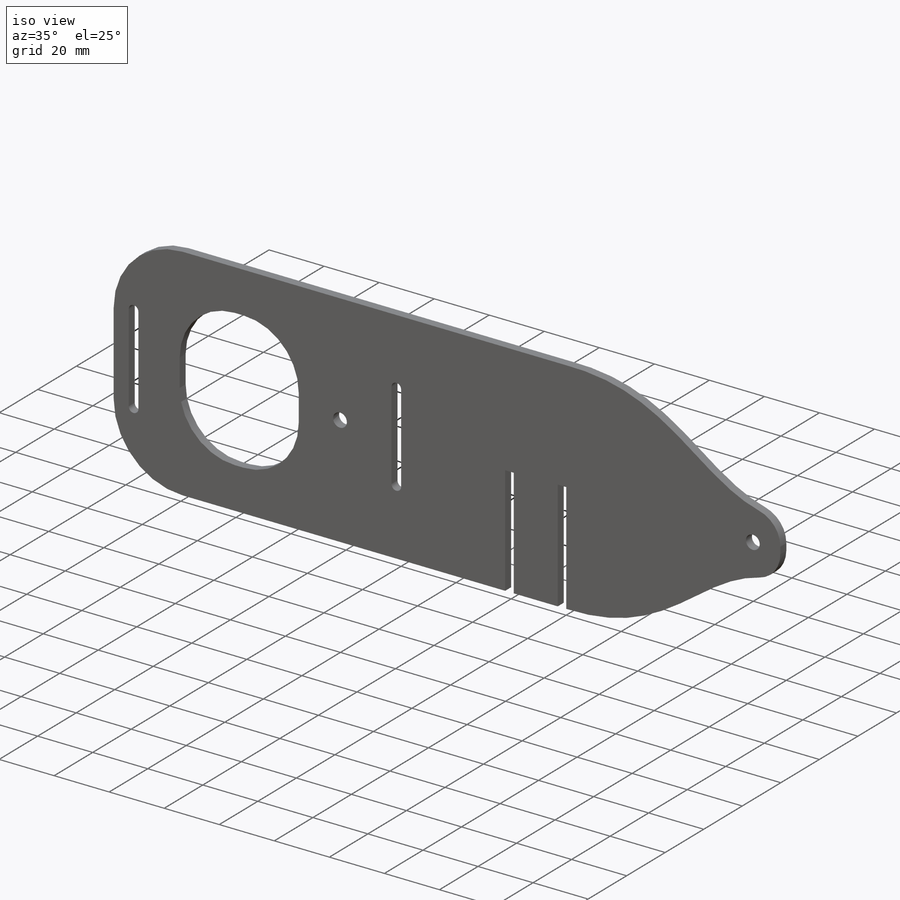
[diagram: iso view]
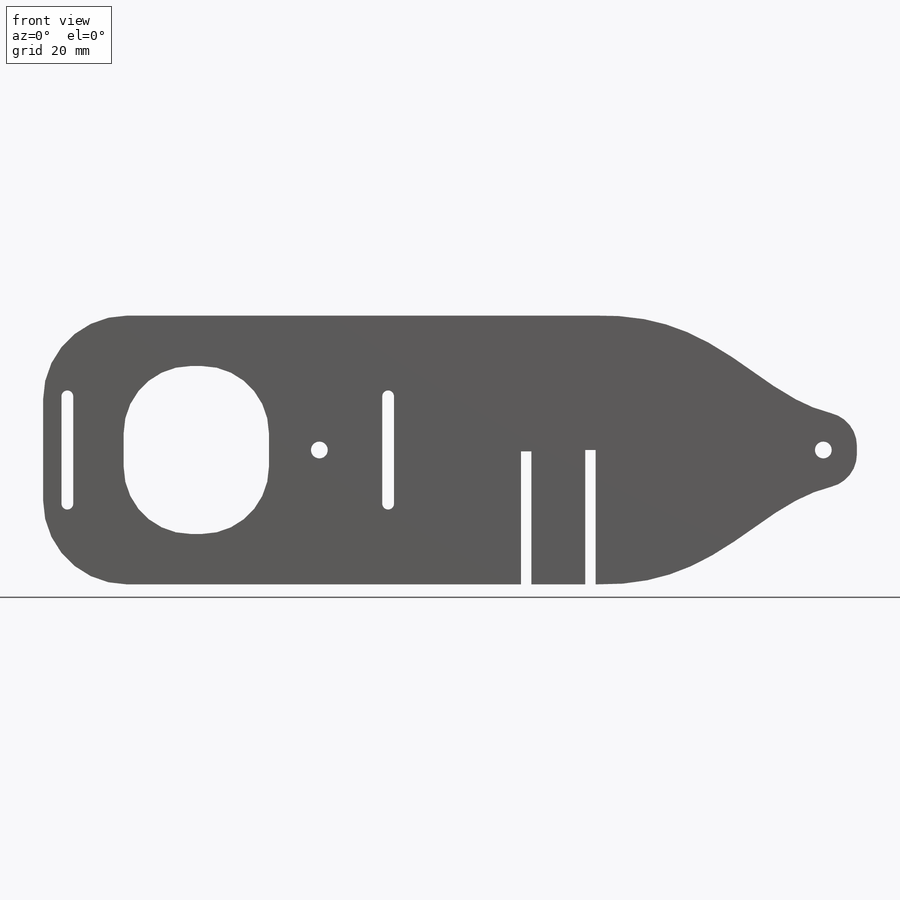
[diagram: front view]
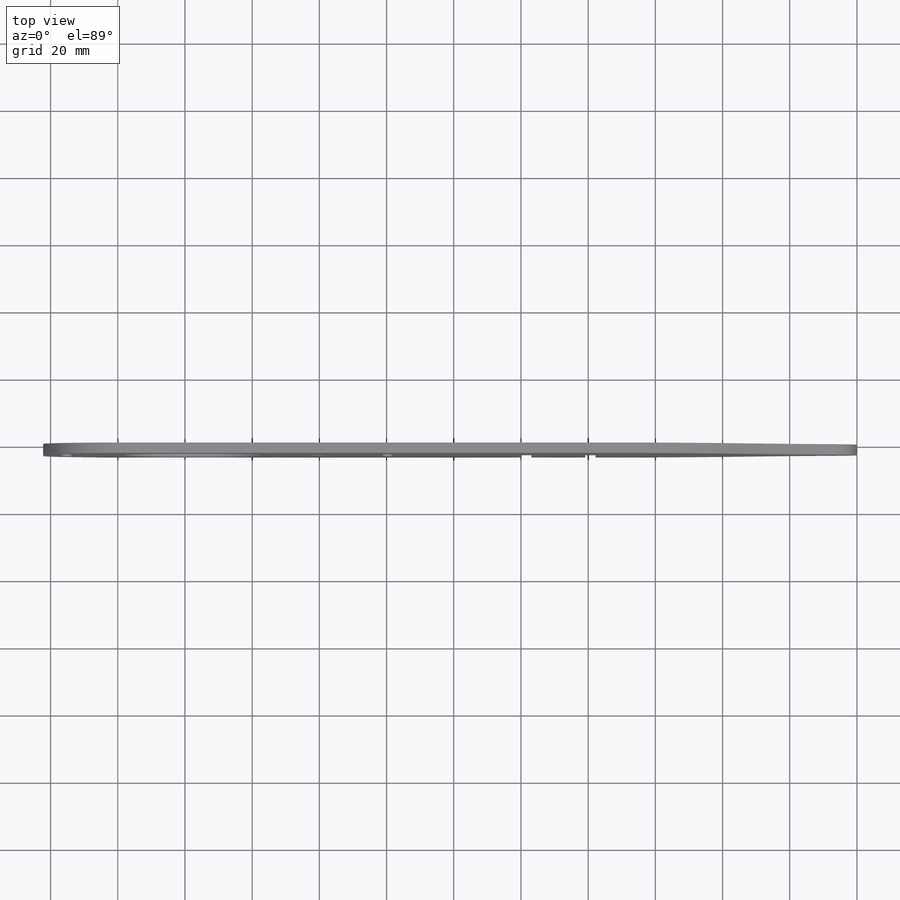
[diagram: top view]
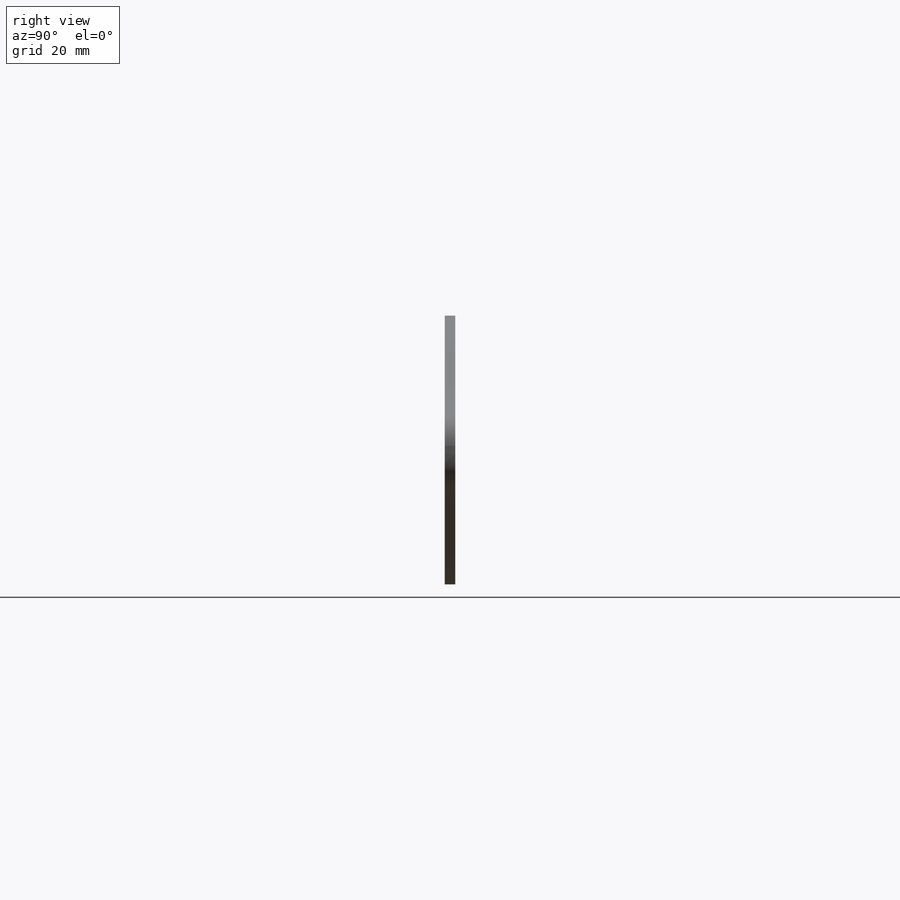
[diagram: right view]
SOLIDWORKS PART (.sldprt)
format: sldprt  version: not decoded by parser v0  size: 457,216 bytes
history: native  units: mm
features: sketch x3, fillet x3, extrude x2, material x1, cut_extrude x1 (+13 scaffold rows collapsed)
feature tree (23):
  scaffold x13  (default folders/planes/origin — collapsed)
  material  "Teak"
  sketch  "Sketch1"  dims[c1.D3=5.0mm c1.D5=4.0mm c1.D1=200.0mm c1.D2=80.0mm c1.D4=26.9494mm c1.D6=3.175mm c2.D4=13.47mm c2.D5=7.225mm c2.D6=2.5mm c2.D7=1.75mm c2.D9=60.0mm c2.D10=15.0mm c2.D11=15.0mm c2.D12=75.0mm c2.D13=15.0mm c2.D14=~63.092633mm c3.D13=~63.092633mm c3.D11=~76.493417mm c3.D10=15.0mm c4.D11=15.0mm c4.D13=15.0mm c4.D8=2.0]
  extrude  "Boss-Extrude1"  Depth=3.1mm
  sketch  "Sketch2"  dims[c1.D1=3.1mm c1.D2=3.1mm c1.D3=3.1mm c1.D4=25.0mm c2.D1=3.1mm c2.D2=16.0mm]
  cut_extrude  "Cut-Extrude1"  [1 undecoded]
  fillet  "Fillet1"  Radius=25mm
  sketch  "Sketch3"  dims[c1.D2=5.0mm c1.D1=10.0mm c1.D3=5.0mm c1.D4=0.0mm c2.D1=10.0mm c2.D3=150.0mm c2.D5=10.0mm]
  extrude  "Boss-Extrude2"  Depth=3.1mm
  fillet  "Fillet3"  Radius=10mm
  fillet  "Fillet4"  Radius=20mm
decode coverage: 8 of 9 modeling features carry decoded parameters
note: ~ marks probable driven/reference dimensions
note: 1 parameter value undecoded
note: suppression state not decoded; provenance and decode notes live in map.json
